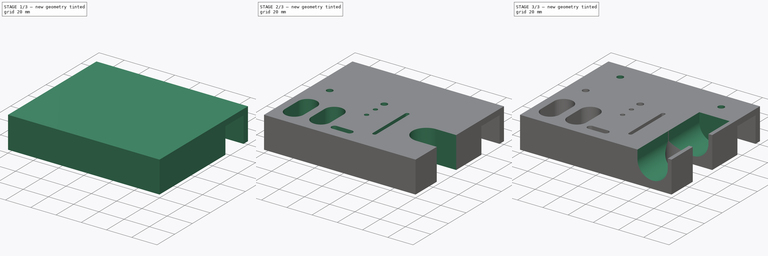
[diagram: build sequence overview — one tinted view per stage of 3, left to right]
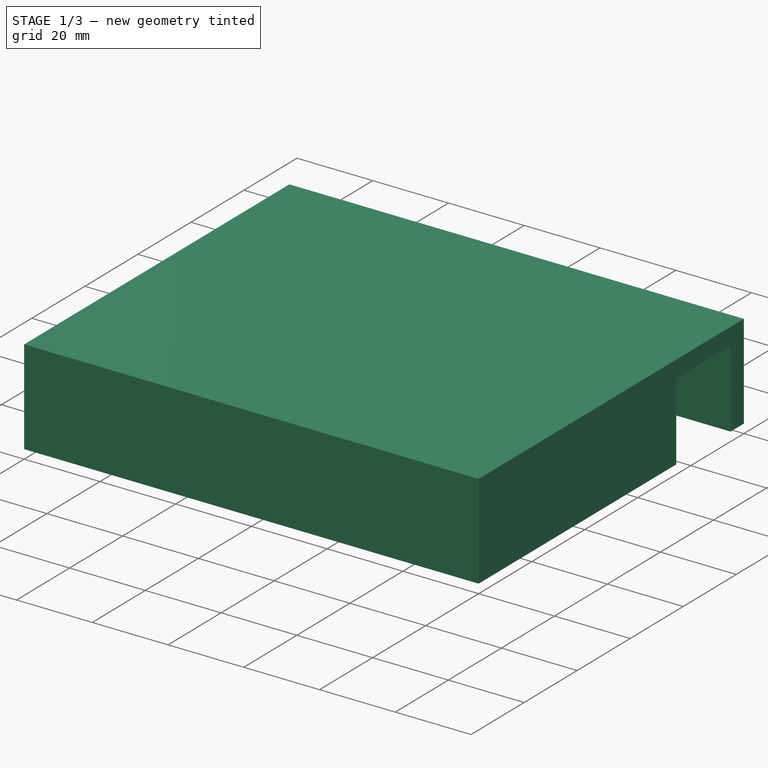
[diagram: stage 1 of 3 — iso view after this stage's code; geometry added in this stage tinted green]
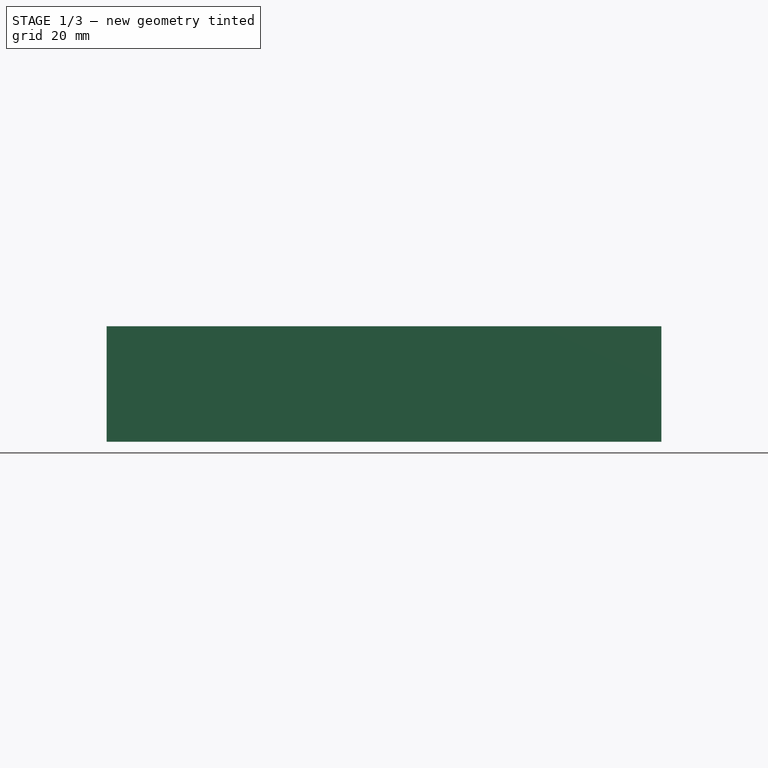
[diagram: stage 1 of 3 — front view after this stage's code; geometry added in this stage tinted green]
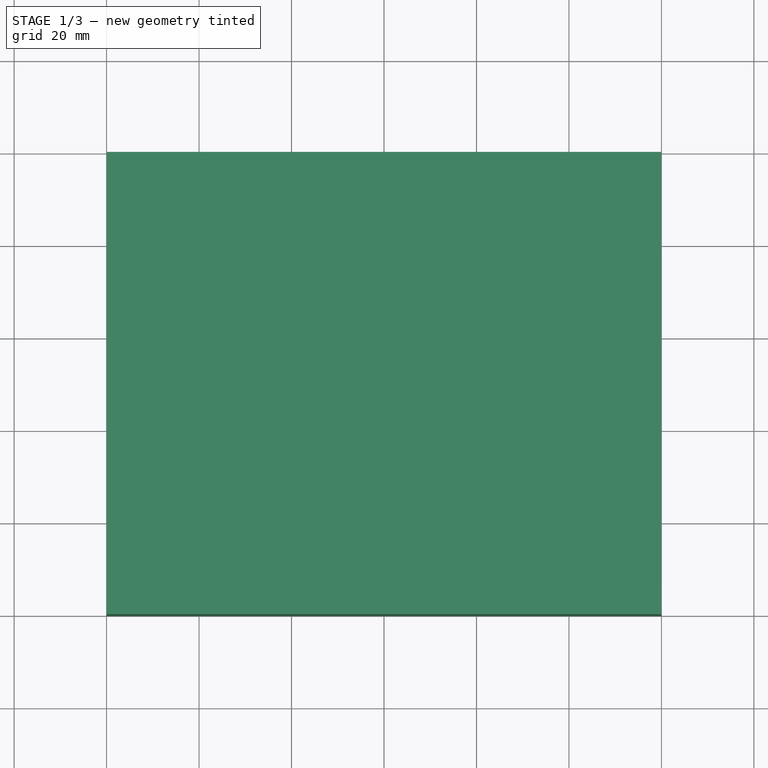
[diagram: stage 1 of 3 — top view after this stage's code; geometry added in this stage tinted green]
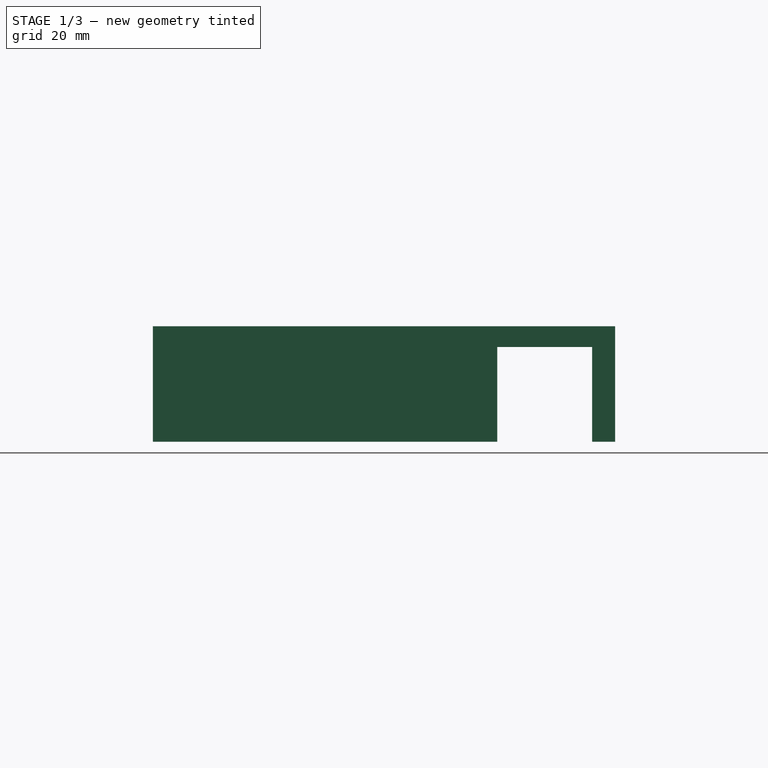
[diagram: stage 1 of 3 — right view after this stage's code; geometry added in this stage tinted green]
FCSTD DOCUMENT  (FreeCAD 0.16R6706 (Git))
Label: basic_tool_holder
License: All rights reserved
LicenseURL: http://en.wikipedia.org/wiki/All_rights_reserved
objects: Sketcher::SketchObject×6, PartDesign::Pocket×5, PartDesign::Pad×1
note: 18 computed .brp shape members not serialized (recipe doc carries the construction recipe); baked Part::Feature solids carry a one-line shape summary decoded from their .brp

FEATURE [Sketcher::SketchObject] Sketch
  sketch-geometry (4):
    g0: LineSegment StartX=-60 StartY=0 StartZ=0 EndX=60 EndY=0 EndZ=0
    g1: LineSegment StartX=60 StartY=0 StartZ=0 EndX=60 EndY=-100 EndZ=0
    g2: LineSegment StartX=60 StartY=-100 StartZ=0 EndX=-60 EndY=-100 EndZ=0
    g3: LineSegment StartX=-60 StartY=-100 StartZ=0 EndX=-60 EndY=0 EndZ=0
  constraints (12):
    c: Coincident(g0,g1)
    c: Coincident(g1,g2)
    c: Coincident(g2,g3)
    c: Coincident(g3,g0)
    c: Horizontal(g0)
    c: Horizontal(g2)
    c: Vertical(g1)
    c: Vertical(g3)
    c: PointOnObject(g0,g-1)
    c: Symmetric(g0,g0,g-1)
    c: DistanceX(g0,g0) = 120
    c: DistanceY(g1,g1) = 100
FEATURE [PartDesign::Pad] Pad  label="main_body"
  Length = 25
  Length2 = 100
  Sketch = -> Sketch
  Type = 0
FEATURE [Sketcher::SketchObject] Sketch001
  Placement = pos=(60,0,0) rot=(0.57735,0.57735,0.57735;2.0944rad)
  Support = -> Pad [Face2]
  sketch-geometry (4):
    g0: LineSegment StartX=-25.5 StartY=20.5 StartZ=0 EndX=-5 EndY=20.5 EndZ=0
    g1: LineSegment StartX=-5 StartY=20.5 StartZ=0 EndX=-5 EndY=0 EndZ=0
    g2: LineSegment StartX=-5 StartY=0 StartZ=0 EndX=-25.5 EndY=0 EndZ=0
    g3: LineSegment StartX=-25.5 StartY=0 StartZ=0 EndX=-25.5 EndY=20.5 EndZ=0
  constraints (12):
    c: Coincident(g0,g1)
    c: Coincident(g1,g2)
    c: Coincident(g2,g3)
    c: Coincident(g3,g0)
    c: Horizontal(g0)
    c: Horizontal(g2)
    c: Vertical(g1)
    c: Vertical(g3)
    c: PointOnObject(g1,g-1)
    c: DistanceX(g1,g-1) = 5
    c: DistanceY(g1,g1) = 20.5
    c: DistanceX(g0,g0) = 20.5
FEATURE [PartDesign::Pocket] Pocket  label="profile_pocket"
  Length = 1000
  Sketch = -> Sketch001
  Type = 0
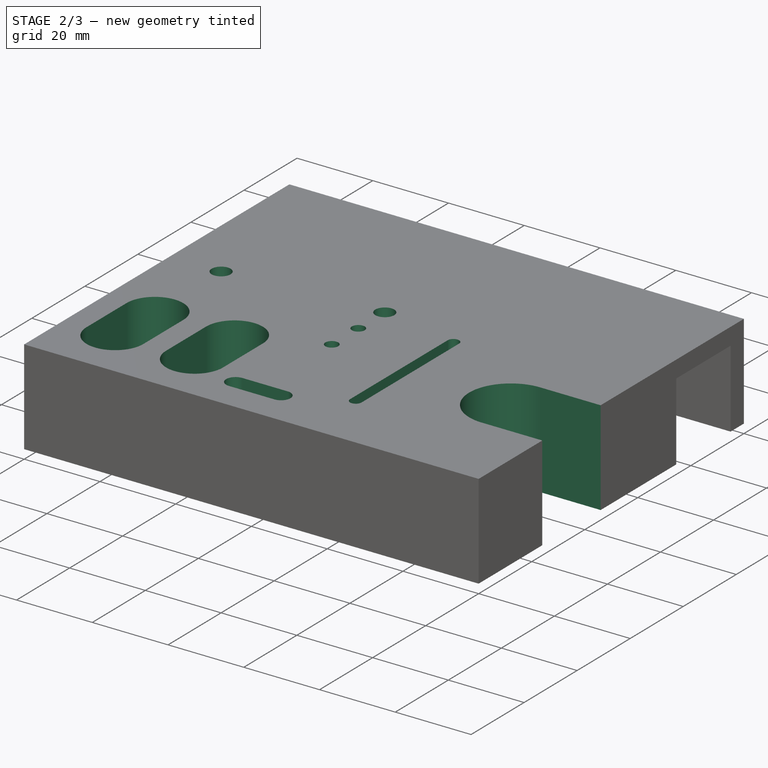
[diagram: stage 2 of 3 — iso view after this stage's code; geometry added in this stage tinted green]
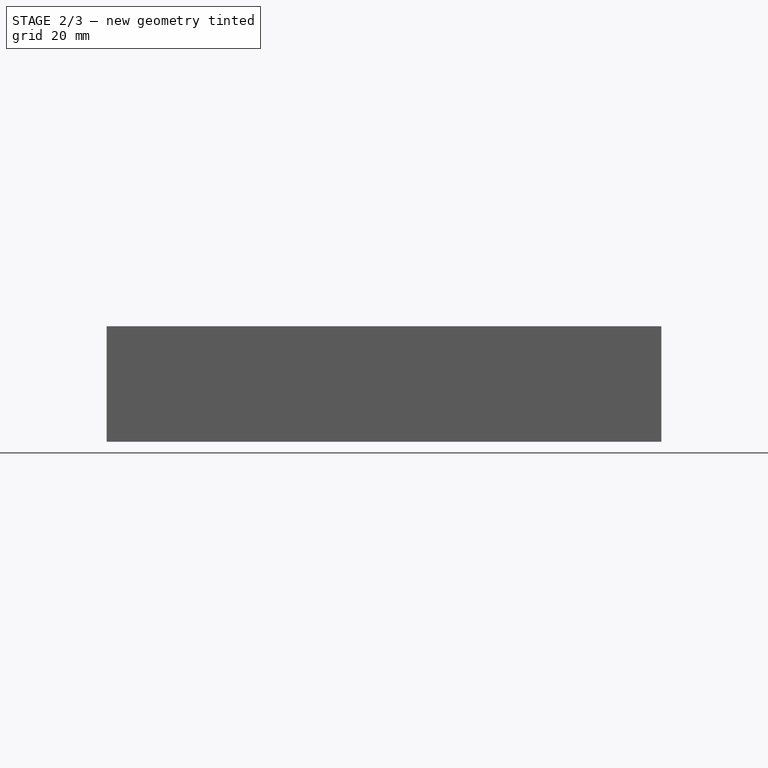
[diagram: stage 2 of 3 — front view after this stage's code; geometry added in this stage tinted green]
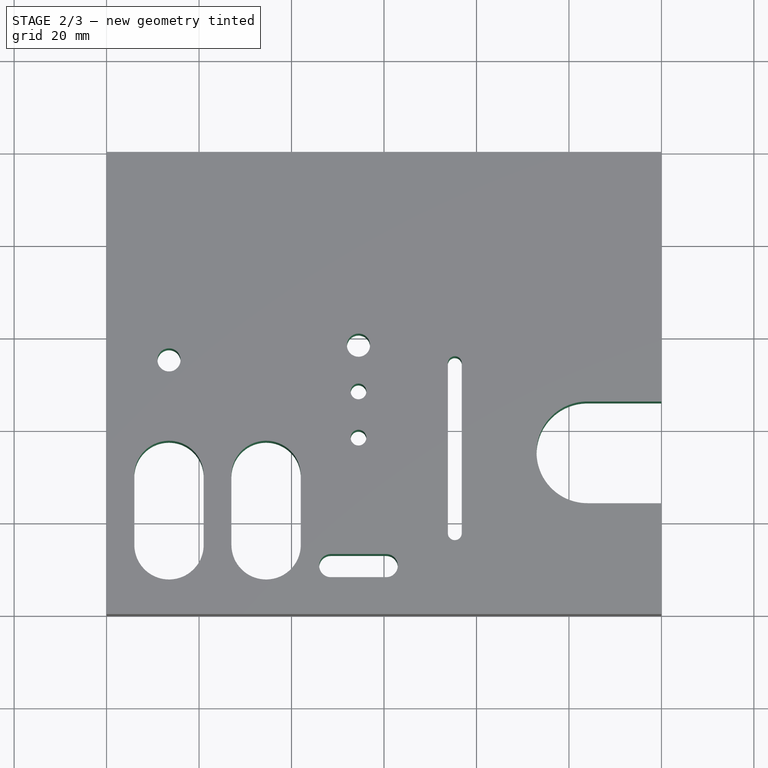
[diagram: stage 2 of 3 — top view after this stage's code; geometry added in this stage tinted green]
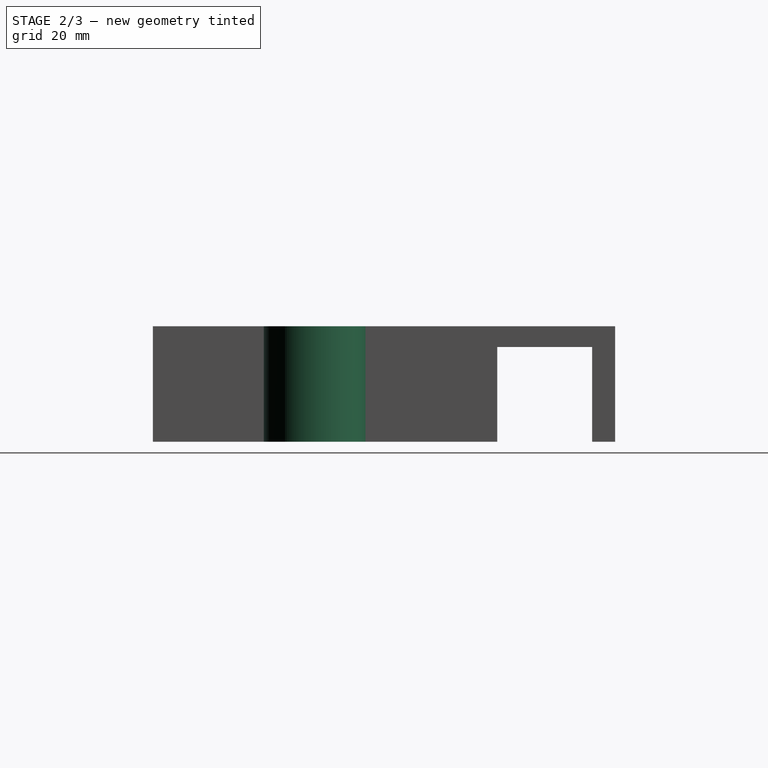
[diagram: stage 2 of 3 — right view after this stage's code; geometry added in this stage tinted green]
FEATURE [Sketcher::SketchObject] Sketch002
  Placement = pos=(0,0,25) rot=(0,0,1;0rad)
  Support = -> Pocket [Face5]
  sketch-geometry (31):
    g0: LineSegment [constr] StartX=-60 StartY=0 StartZ=0 EndX=60 EndY=0 EndZ=0
    g1: LineSegment [constr] StartX=60 StartY=0 StartZ=0 EndX=60 EndY=-30.5 EndZ=0
    g2: LineSegment [constr] StartX=60 StartY=-30.5 StartZ=0 EndX=-60 EndY=-30.5 EndZ=0
    g3: LineSegment [constr] StartX=-60 StartY=-30.5 StartZ=0 EndX=-60 EndY=0 EndZ=0
    g4: ArcOfCircle CenterX=-46.5 CenterY=-70 CenterZ=0 NormalX=0 NormalY=0 NormalZ=1 Radius=7.5 StartAngle=0 EndAngle=3.14159
    g5: ArcOfCircle CenterX=-46.5 CenterY=-85 CenterZ=0 NormalX=0 NormalY=0 NormalZ=1 Radius=7.5 StartAngle=3.14159 EndAngle=6.28319
    g6: LineSegment StartX=-54 StartY=-70 StartZ=0 EndX=-54 EndY=-85 EndZ=0
    g7: LineSegment StartX=-39 StartY=-70 StartZ=0 EndX=-39 EndY=-85 EndZ=0
    g8: ArcOfCircle CenterX=-25.5 CenterY=-70 CenterZ=0 NormalX=0 NormalY=0 NormalZ=1 Radius=7.5 StartAngle=0 EndAngle=3.14159
    g9: ArcOfCircle CenterX=-25.5 CenterY=-85 CenterZ=0 NormalX=0 NormalY=0 NormalZ=1 Radius=7.5 StartAngle=3.14159 EndAngle=6.28319
    g10: LineSegment StartX=-33 StartY=-70 StartZ=0 EndX=-33 EndY=-85 EndZ=0
    g11: LineSegment StartX=-18 StartY=-70 StartZ=0 EndX=-18 EndY=-85 EndZ=0
    g12: Circle CenterX=-46.5 CenterY=-45 CenterZ=0 NormalX=0 NormalY=0 NormalZ=1 Radius=2.5
    g13: ArcOfCircle CenterX=15.3154 CenterY=-45.7057 CenterZ=0 NormalX=0 NormalY=0 NormalZ=1 Radius=1.5 StartAngle=0 EndAngle=3.14159
    g14: ArcOfCircle CenterX=15.3154 CenterY=-82.4919 CenterZ=0 NormalX=0 NormalY=0 NormalZ=1 Radius=1.5 StartAngle=3.14159 EndAngle=6.28319
    g15: LineSegment StartX=13.8154 StartY=-45.7057 StartZ=0 EndX=13.8154 EndY=-82.4919 EndZ=0
    g16: LineSegment StartX=16.8154 StartY=-45.7057 StartZ=0 EndX=16.8154 EndY=-82.4919 EndZ=0
    g17: ArcOfCircle CenterX=0.483243 CenterY=-89.5 CenterZ=0 NormalX=0 NormalY=0 NormalZ=1 Radius=2.5 StartAngle=4.71239 EndAngle=7.85398
    g18: ArcOfCircle CenterX=-11.5168 CenterY=-89.5 CenterZ=0 NormalX=0 NormalY=0 NormalZ=1 Radius=2.5 StartAngle=1.5708 EndAngle=4.71239
    g19: LineSegment StartX=0.483243 StartY=-87 StartZ=0 EndX=-11.5168 EndY=-87 EndZ=0
    g20: LineSegment StartX=0.483243 StartY=-92 StartZ=0 EndX=-11.5168 EndY=-92 EndZ=0
    g21: Circle CenterX=-5.51676 CenterY=-41.817 CenterZ=0 NormalX=0 NormalY=0 NormalZ=1 Radius=2.5
    g22: Circle CenterX=-5.51676 CenterY=-51.817 CenterZ=0 NormalX=0 NormalY=0 NormalZ=1 Radius=1.7
    g23: Circle CenterX=-5.51676 CenterY=-61.817 CenterZ=0 NormalX=0 NormalY=0 NormalZ=1 Radius=1.7
    g24: LineSegment [constr] StartX=-39 StartY=-85 StartZ=0 EndX=-33 EndY=-85 EndZ=0
    g25: LineSegment [constr] StartX=-60 StartY=-30.5 StartZ=0 EndX=-60 EndY=-100 EndZ=0
    g26: LineSegment [constr] StartX=-60 StartY=-100 StartZ=0 EndX=60 EndY=-100 EndZ=0
    g27: LineSegment [constr] StartX=60 StartY=-100 StartZ=0 EndX=60 EndY=-30.5 EndZ=0
    g28: LineSegment [constr] StartX=-5.51676 StartY=-41.817 StartZ=0 EndX=-5.51676 EndY=-61.817 EndZ=0
    g29: LineSegment [constr] StartX=-46.5 StartY=-45 StartZ=0 EndX=-46.5 EndY=-70 EndZ=0
    g30: LineSegment [constr] StartX=-5.51676 StartY=-61.817 StartZ=0 EndX=-5.51676 EndY=-87 EndZ=0
  constraints (76):
    c: Coincident(g0,g1)
    c: Coincident(g1,g2)
    c: Coincident(g2,g3)
    c: Coincident(g3,g0)
    c: Horizontal(g0)
    c: Horizontal(g2)
    c: Vertical(g1)
    c: Vertical(g3)
    c: PointOnObject(g0,g-1)
    c: Symmetric(g0,g0,g-2)
    c: DistanceX(g0,g0) = 120
    c: DistanceY(g1,g1) = 30.5
    c: Tangent(g4,g7) = 1.5708
    c: Tangent(g4,g6) = -1.5708
    c: Tangent(g6,g5) = -1.5708
    c: Tangent(g7,g5) = 1.5708
    c: Vertical(g6)
    c: Equal(g4,g5)
    c: Tangent(g8,g11) = 1.5708
    c: Tangent(g8,g10) = -1.5708
    c: Tangent(g10,g9) = -1.5708
    c: Tangent(g11,g9) = 1.5708
    c: Vertical(g10)
    c: Equal(g8,g9)
    c: Tangent(g13,g16) = 1.5708
    c: Tangent(g13,g15) = -1.5708
    c: Tangent(g15,g14) = -1.5708
    c: Tangent(g16,g14) = 1.5708
    c: Vertical(g15)
    c: Equal(g13,g14)
    c: Tangent(g17,g20) = 1.5708
    c: Tangent(g17,g19) = -1.5708
    c: Tangent(g19,g18) = -1.5708
    c: Tangent(g20,g18) = 1.5708
    c: Horizontal(g19)
    c: Equal(g17,g18)
    c: Equal(g4,g8)
    c: DistanceX(g5,g5) = 15
    c: DistanceX(g5,g9) = 6
    c: DistanceY(g6,g6) = 15
    c: Equal(g10,g7)
    c: Coincident(g24,g5)
    c: Coincident(g24,g9)
    c: Horizontal(g24)
    c: Radius(g12) = 2.5
    c: Coincident(g2,g25)
    c: Vertical(g25)
    c: Coincident(g25,g26)
    c: Horizontal(g26)
    c: Coincident(g26,g27)
    c: Coincident(g27,g1)
    c: Vertical(g27)
    c: DistanceY(g26,g0) = 100
    c: DistanceY(g18,g18) = 5
    c: DistanceX(g19,g19) = 12
    c: DistanceX(g14,g14) = 3
    c: Radius(g21) = 2.5
    c: Radius(g22) = 1.7
    c: Radius(g23) = 1.7
    c: Coincident(g28,g21)
    c: Coincident(g28,g23)
    c: Vertical(g28)
    c: PointOnObject(g22,g28)
    c: DistanceY(g22,g21) = 10
    c: DistanceY(g23,g22) = 10
    c: DistanceX(g25,g5) = 6
    c: DistanceY(g25,g5) = 15
    c: Coincident(g29,g12)
    c: Coincident(g29,g4)
    c: Vertical(g29)
    c: DistanceY(g29,g29) = 25
    c: Coincident(g30,g23)
    c: PointOnObject(g30,g19)
    c: Vertical(g30)
    c: Symmetric(g18,g17,g30)
    c: DistanceY(g25,g18) = 8
FEATURE [PartDesign::Pocket] Pocket001  label="tool_holes"
  Length = 100
  Sketch = -> Sketch002
  Type = 0
FEATURE [Sketcher::SketchObject] Sketch003
  ExternalGeometry = -> [Pocket001]
  Placement = pos=(0,0,25) rot=(0,0,1;0rad)
  Support = -> Pocket001 [Face5]
  sketch-geometry (8):
    g0: LineSegment [constr] StartX=60 StartY=-100 StartZ=0 EndX=30 EndY=-100 EndZ=0
    g1: LineSegment [constr] StartX=30 StartY=-100 StartZ=0 EndX=30 EndY=-30 EndZ=0
    g2: LineSegment [constr] StartX=30 StartY=-30 StartZ=0 EndX=60 EndY=-30 EndZ=0
    g3: LineSegment [constr] StartX=60 StartY=-30 StartZ=0 EndX=60 EndY=-100 EndZ=0
    g4: ArcOfCircle CenterX=74.4823 CenterY=-65 CenterZ=0 NormalX=0 NormalY=0 NormalZ=1 Radius=11 StartAngle=4.71239 EndAngle=7.85398
    g5: ArcOfCircle CenterX=43.9919 CenterY=-65 CenterZ=0 NormalX=0 NormalY=0 NormalZ=1 Radius=11 StartAngle=1.5708 EndAngle=4.71239
    g6: LineSegment StartX=74.4823 StartY=-54 StartZ=0 EndX=43.9919 EndY=-54 EndZ=0
    g7: LineSegment StartX=74.4823 StartY=-76 StartZ=0 EndX=43.9919 EndY=-76 EndZ=0
  constraints (20):
    c: Coincident(g0,g1)
    c: Coincident(g1,g2)
    c: Coincident(g2,g3)
    c: Coincident(g3,g0)
    c: Horizontal(g0)
    c: Horizontal(g2)
    c: Vertical(g1)
    c: Vertical(g3)
    c: Coincident(g0,g-3)
    c: DistanceY(g1,g1) = 70
    c: DistanceX(g0,g0) = 30
    c: Tangent(g4,g7) = 1.5708
    c: Tangent(g4,g6) = -1.5708
    c: Tangent(g6,g5) = -1.5708
    c: Tangent(g7,g5) = 1.5708
    c: Horizontal(g6)
    c: Equal(g4,g5)
    c: DistanceY(g4,g4) = 22
    c: DistanceY(g0,g4) = 35
    c: Symmetric(g1,g0,g5)
FEATURE [PartDesign::Pocket] Pocket002  label="hammer_handle"
  Length = 100
  Sketch = -> Sketch003
  Type = 0
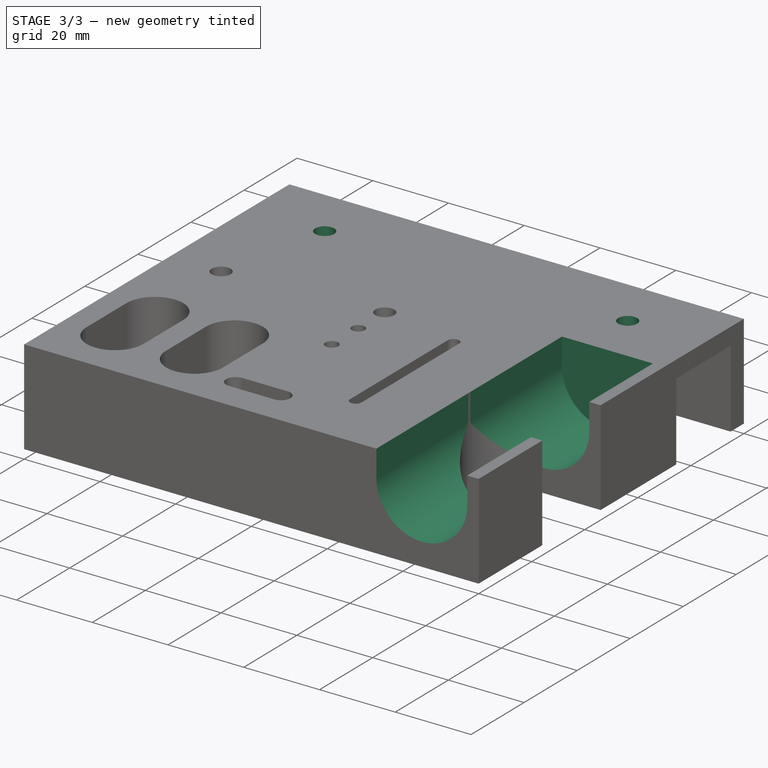
[diagram: stage 3 of 3 — iso view after this stage's code; geometry added in this stage tinted green]
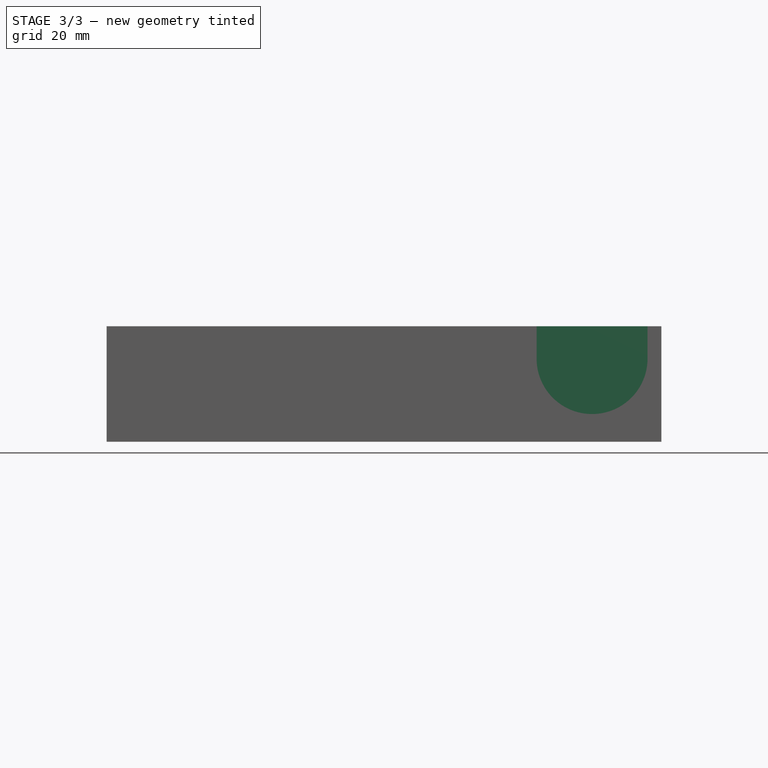
[diagram: stage 3 of 3 — front view after this stage's code; geometry added in this stage tinted green]
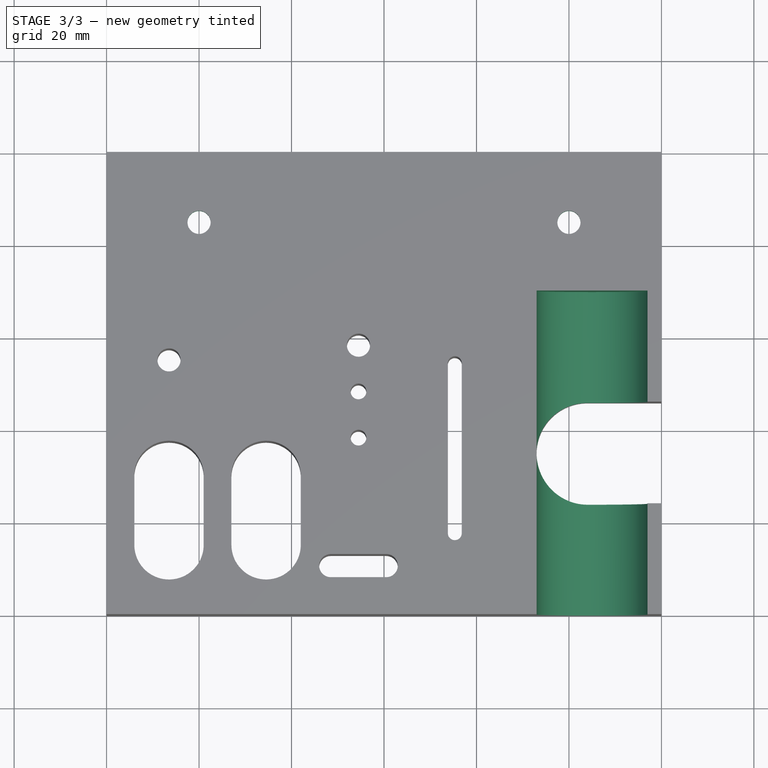
[diagram: stage 3 of 3 — top view after this stage's code; geometry added in this stage tinted green]
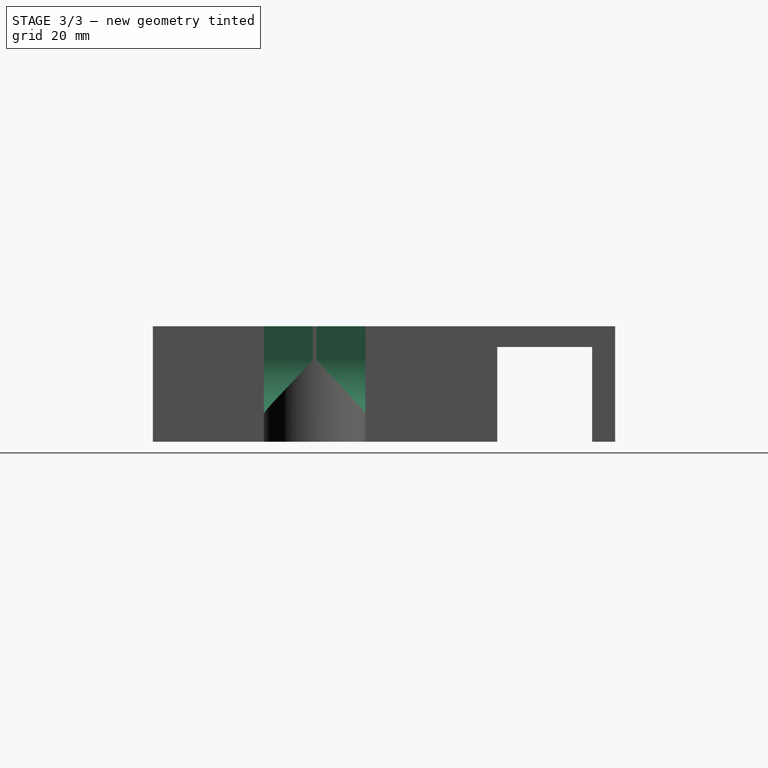
[diagram: stage 3 of 3 — right view after this stage's code; geometry added in this stage tinted green]
FEATURE [Sketcher::SketchObject] Sketch004
  ExternalGeometry = -> [Pocket002]
  Placement = pos=(0,-100,0) rot=(1,0,0;1.5708rad)
  Support = -> Pocket002 [Face10]
  sketch-geometry (4):
    g0: ArcOfCircle CenterX=45 CenterY=34.7523 CenterZ=0 NormalX=0 NormalY=0 NormalZ=1 Radius=12 StartAngle=0 EndAngle=3.14159
    g1: ArcOfCircle CenterX=45 CenterY=18 CenterZ=0 NormalX=0 NormalY=0 NormalZ=1 Radius=12 StartAngle=3.14159 EndAngle=6.28319
    g2: LineSegment StartX=33 StartY=34.7523 StartZ=0 EndX=33 EndY=18 EndZ=0
    g3: LineSegment StartX=57 StartY=34.7523 StartZ=0 EndX=57 EndY=18 EndZ=0
  constraints (9):
    c: Tangent(g0,g3) = 1.5708
    c: Tangent(g0,g2) = -1.5708
    c: Tangent(g2,g1) = -1.5708
    c: Tangent(g3,g1) = 1.5708
    c: Vertical(g2)
    c: Equal(g0,g1)
    c: DistanceX(g1,g1) = 24
    c: DistanceX(g1,g-3) = 15
    c: DistanceY(g-1,g1) = 18
FEATURE [PartDesign::Pocket] Pocket003  label="hammer_head"
  Length = 70
  Sketch = -> Sketch004
  Type = 0
FEATURE [Sketcher::SketchObject] Sketch005
  Placement = pos=(0,0,25) rot=(0,0,1;0rad)
  Support = -> Pocket003 [Face5]
  sketch-geometry (3):
    g0: LineSegment [constr] StartX=-40 StartY=-15.25 StartZ=0 EndX=40 EndY=-15.25 EndZ=0
    g1: Circle CenterX=-40 CenterY=-15.25 CenterZ=0 NormalX=0 NormalY=0 NormalZ=1 Radius=2.5
    g2: Circle CenterX=40 CenterY=-15.25 CenterZ=0 NormalX=0 NormalY=0 NormalZ=1 Radius=2.5
  constraints (8):
    c: Horizontal(g0)
    c: Symmetric(g0,g0,g-2)
    c: DistanceY(g0,g-1) = 15.25
    c: Coincident(g1,g0)
    c: Coincident(g2,g0)
    c: Equal(g2,g1)
    c: Radius(g2) = 2.5
    c: DistanceX(g0,g0) = 80
FEATURE [PartDesign::Pocket] Pocket004  label="profile_bolts"
  Length = 100
  Sketch = -> Sketch005
  Type = 0
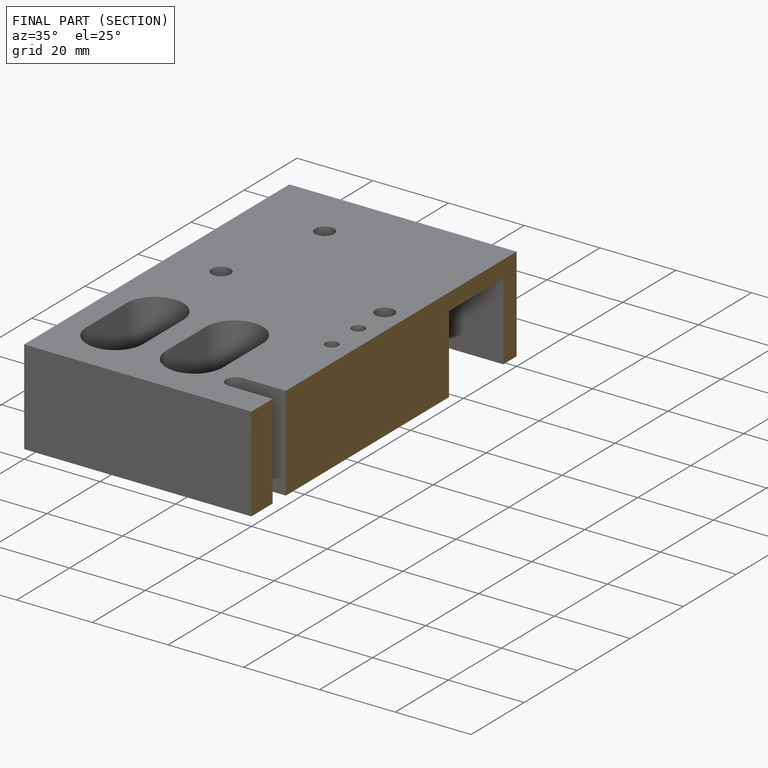
[diagram: finished part — half-section view (interior)]
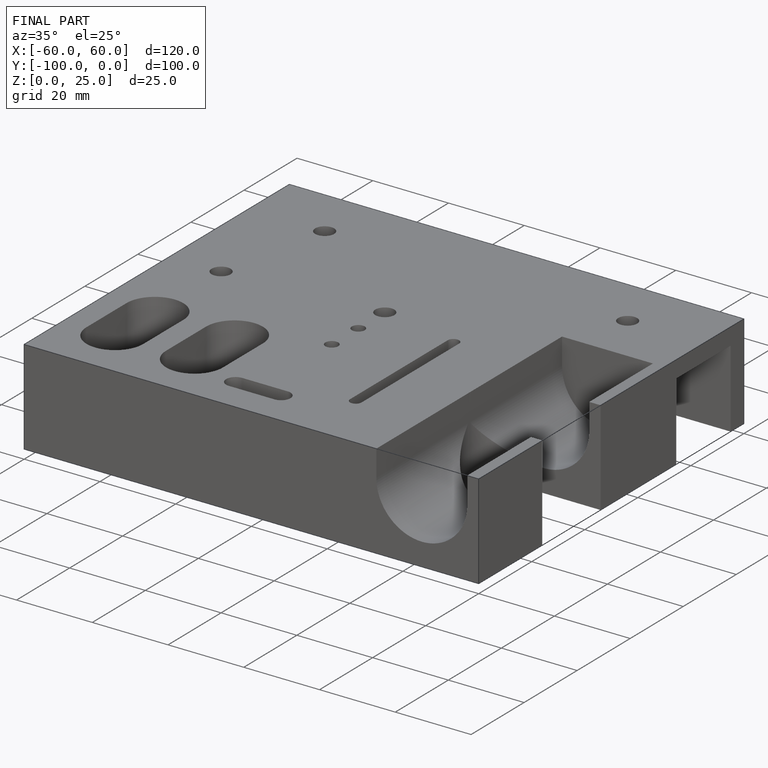
[diagram: finished part — iso view with bounding-box wireframe]
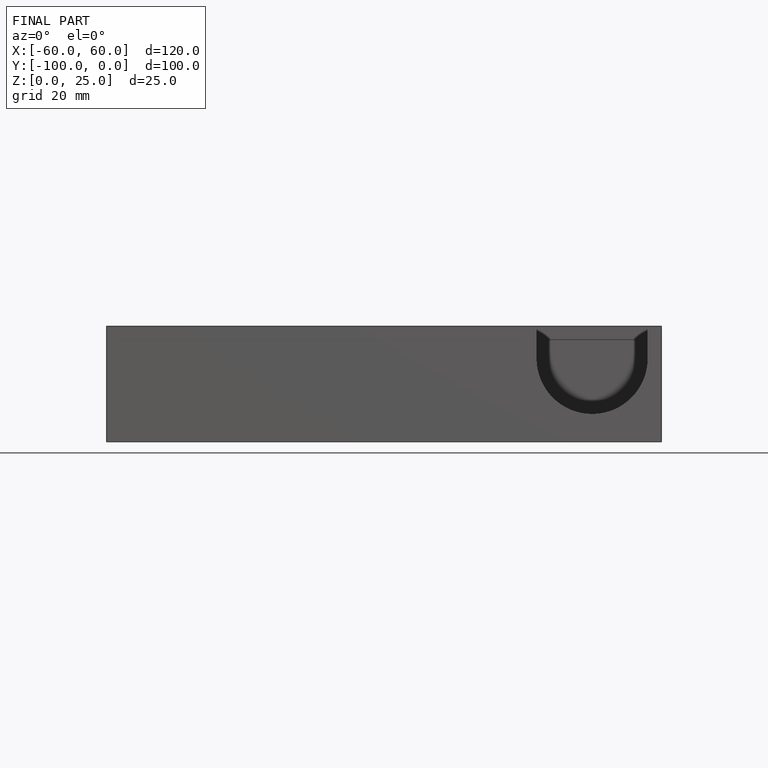
[diagram: finished part — front view with bounding-box wireframe]
